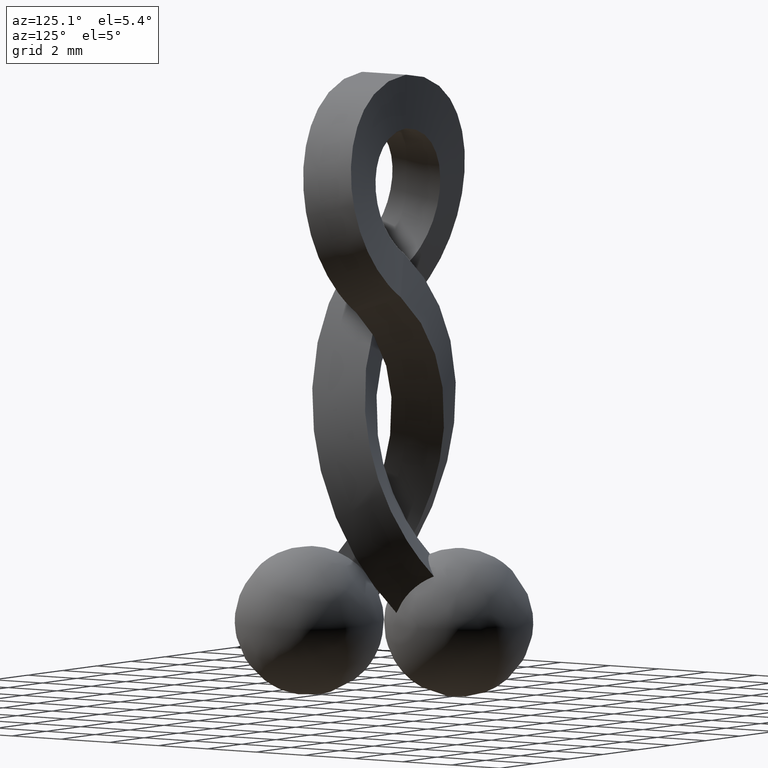
[diagram: clean part render]
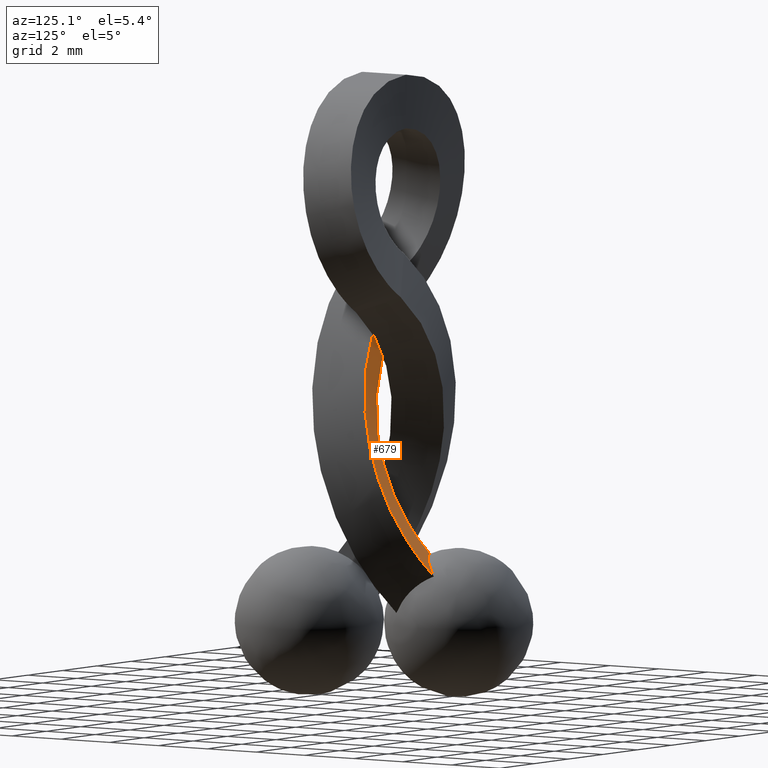
[diagram: same view with one face highlighted and labeled with its STEP entity id]
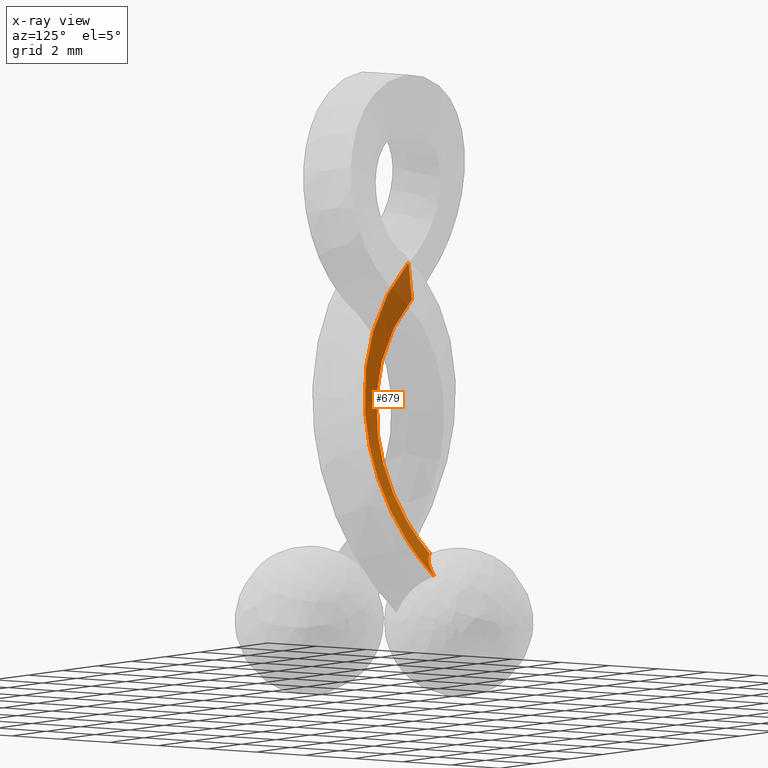
[diagram: x-ray of the same camera — body ghosted, the highlighted face saturated]
A machine part, auxiliary view. The second image highlights one B-rep face of the part: STEP entity #679.
The next image is the same camera in x-ray: the body ghosted, the highlighted face saturated — about 27% of this face is hidden behind the body in this view.
In plain terms, the highlighted face is a freeform B-spline surface patch.
Its self-contained STEP definition (entity closure, byte-faithful):
#90=CARTESIAN_POINT('',(-0.657491439051927,1.417299756467276,-11.994778617612900));
#91=VERTEX_POINT('',#90);
#107=CARTESIAN_POINT('',(0.658760675943680,2.505697120185635,-12.593247586821899));
#108=VERTEX_POINT('',#107);
#109=CARTESIAN_POINT('',(-0.657491439051927,1.417299756467276,-11.994778617612900));
#110=CARTESIAN_POINT('',(-0.517134511926048,1.484230831718313,-12.000588673705311));
#111=CARTESIAN_POINT('',(-0.382323151591536,1.558848614803807,-12.018079365642270));
#112=CARTESIAN_POINT('',(-0.124303491285074,1.722326315790740,-12.076559666338760));
#113=CARTESIAN_POINT('',(-0.004076162121452,1.809283263104518,-12.116843325796619));
#114=CARTESIAN_POINT('',(0.163556995746135,1.947324008507317,-12.193144119729700));
#115=CARTESIAN_POINT('',(0.217299145937167,1.994618738000339,-12.221239788024031));
#116=CARTESIAN_POINT('',(0.320381121082496,2.091893141079281,-12.282835618428230));
#117=CARTESIAN_POINT('',(0.369862513124475,2.142055584997199,-12.316477426704870));
#118=CARTESIAN_POINT('',(0.508873642389854,2.294118886800031,-12.423787011125290));
#119=CARTESIAN_POINT('',(0.589896935699692,2.398260327183845,-12.504172391878560));
#120=CARTESIAN_POINT('',(0.658760675943680,2.505697120185635,-12.593247586821899));
#121=B_SPLINE_CURVE_WITH_KNOTS('',3,(#109,#110,#111,#112,#113,#114,#115,#116,#117,#118,#119,#120),.UNSPECIFIED.,.F.,.U.,(4,2,2,2,2,4),(0.0,0.250000000000000,0.499999999999999,0.624999999999999,0.749999999999999,1.0),.UNSPECIFIED.);
#122=EDGE_CURVE('',#91,#108,#121,.T.);
#462=CARTESIAN_POINT('',(-1.381200528835150,0.031832750880373,-2.321052976440520));
#463=VERTEX_POINT('',#462);
#464=CARTESIAN_POINT('',(-1.381200528835150,0.031832750880373,-2.321052976440520));
#465=CARTESIAN_POINT('',(-1.377642862433158,0.031431128671852,-2.323682562733832));
#466=CARTESIAN_POINT('',(-1.374084027015562,0.031029665234120,-2.326313955397650));
#467=CARTESIAN_POINT('',(-1.252548344225459,0.017330545180671,-2.416212807102182));
#468=CARTESIAN_POINT('',(-1.136405099028224,0.005923095042926,-2.507580426602763));
#469=CARTESIAN_POINT('',(-0.909464190182076,-0.013391134007533,-2.695754686220741));
#470=CARTESIAN_POINT('',(-0.798448682129451,-0.021245397095523,-2.792972256132725));
#471=CARTESIAN_POINT('',(-0.473328374236939,-0.039361018101160,-3.093521106565341));
#472=CARTESIAN_POINT('',(-0.267158184520941,-0.044168576698839,-3.305760744271516));
#473=CARTESIAN_POINT('',(0.315299244447811,-0.036684463122232,-3.973642131997281));
#474=CARTESIAN_POINT('',(0.655276530788832,-0.002397695245965,-4.460448782801236));
#475=CARTESIAN_POINT('',(1.502527802284968,0.185559231620708,-6.005859333617005));
#476=CARTESIAN_POINT('',(1.833074065814426,0.425717098387013,-7.149490307756510));
#477=CARTESIAN_POINT('',(1.954066884848362,1.083773851023763,-9.416007244859854));
#478=CARTESIAN_POINT('',(1.744413744545469,1.501130510513226,-10.537025640521231));
#479=CARTESIAN_POINT('',(1.112414103858871,2.137845773869180,-11.902304329882259));
#480=CARTESIAN_POINT('',(0.901516504506099,2.320187147813737,-12.260243035174630));
#481=CARTESIAN_POINT('',(0.658760675943680,2.505697120185635,-12.593247586821899));
#482=B_SPLINE_CURVE_WITH_KNOTS('',3,(#464,#465,#466,#467,#468,#469,#470,#471,#472,#473,#474,#475,#476,#477,#478,#479,#480,#481),.UNSPECIFIED.,.F.,.U.,(4,2,2,2,2,2,2,2,4),(-0.000943042586308,0.0,0.031250000000000,0.062500000000000,0.125000000000000,0.250000000000000,0.500000000000000,0.750000000000000,0.845641921687115),.UNSPECIFIED.);
#483=EDGE_CURVE('',#463,#108,#482,.T.);
#551=CARTESIAN_POINT('',(-2.411460444258520,-0.551425846800978,-3.675844381211625));
#552=VERTEX_POINT('',#551);
#566=CARTESIAN_POINT('',(-2.411460444258520,-0.551425846800978,-3.675844381211625));
#567=CARTESIAN_POINT('',(-2.330601684355954,-0.560376847314786,-3.736183353277583));
#568=CARTESIAN_POINT('',(-2.259938183707811,-0.567481014458086,-3.791242172227011));
#569=CARTESIAN_POINT('',(-2.089985188468579,-0.582693306376144,-3.929737943810253));
#570=CARTESIAN_POINT('',(-1.997767623744306,-0.589641843269921,-4.009118644479323));
#571=CARTESIAN_POINT('',(-1.727577723178754,-0.605999238105813,-4.254665916435283));
#572=CARTESIAN_POINT('',(-1.556075003628476,-0.610914422524207,-4.428247807254915));
#573=CARTESIAN_POINT('',(-1.071034717968621,-0.607589786454812,-4.974997930353491));
#574=CARTESIAN_POINT('',(-0.787176611138672,-0.581206401693986,-5.374174621561333));
#575=CARTESIAN_POINT('',(-0.077234213399004,-0.431706545402088,-6.643208278309625));
#576=CARTESIAN_POINT('',(0.203883734622244,-0.237084492992499,-7.584630542350798));
#577=CARTESIAN_POINT('',(0.320937131590816,0.299958158984014,-9.454569207429165));
#578=CARTESIAN_POINT('',(0.156776130739797,0.641936245511515,-10.381544814196840));
#579=CARTESIAN_POINT('',(-0.337901582809499,1.149142917320489,-11.478813479512660));
#580=CARTESIAN_POINT('',(-0.487089554705339,1.282029373913941,-11.744653612742180));
#581=CARTESIAN_POINT('',(-0.657491439051927,1.417299756467276,-11.994778617612900));
#582=B_SPLINE_CURVE_WITH_KNOTS('',3,(#566,#567,#568,#569,#570,#571,#572,#573,#574,#575,#576,#577,#578,#579,#580,#581),.UNSPECIFIED.,.F.,.U.,(4,2,2,2,2,2,2,4),(0.150753461988381,0.175874032664971,0.207124032664971,0.269624032664971,0.394624032664971,0.644624032664971,0.894624032664971,0.979691589590200),.UNSPECIFIED.);
#583=EDGE_CURVE('',#552,#91,#582,.T.);
#588=CARTESIAN_POINT('',(-2.538646164844590,-0.537030093649915,-3.582028233097302));
#589=CARTESIAN_POINT('',(-2.171529945256316,-0.345313648741037,-3.147874938085739));
#590=CARTESIAN_POINT('',(-1.804413725668046,-0.153597203832163,-2.713721643074173));
#591=CARTESIAN_POINT('',(-1.437297506079770,0.038119241076712,-2.279568348062607));
#592=CARTESIAN_POINT('',(-2.515661047650303,-0.539632832868891,-3.598991217518992));
#593=CARTESIAN_POINT('',(-2.148790939414992,-0.347890440760743,-3.164650065235509));
#594=CARTESIAN_POINT('',(-1.781920831179687,-0.156148048652599,-2.730308912952023));
#595=CARTESIAN_POINT('',(-1.415050722944377,0.035594343455547,-2.295967760668538));
#596=CARTESIAN_POINT('',(-2.493109312041288,-0.542194257886728,-3.615609216000395));
#597=CARTESIAN_POINT('',(-2.126338293327935,-0.350438392638524,-3.181202236742657));
#598=CARTESIAN_POINT('',(-1.759567274614590,-0.158682527390324,-2.746795257484914));
#599=CARTESIAN_POINT('',(-1.392796255901241,0.033073337857878,-2.312388278227171));
#600=CARTESIAN_POINT('',(-2.364796595270830,-0.556901837922509,-3.709726977926025));
#601=CARTESIAN_POINT('',(-1.994035556176840,-0.365513943194910,-3.278536366541165));
#602=CARTESIAN_POINT('',(-1.623274517082800,-0.174126048467286,-2.847345755156305));
#603=CARTESIAN_POINT('',(-1.252513477988800,0.017261846260320,-2.416155143771475));
#604=CARTESIAN_POINT('',(-2.278430929389940,-0.565837994654982,-3.776198646555885));
#605=CARTESIAN_POINT('',(-1.897744146875730,-0.375273635141007,-3.353306877889240));
#606=CARTESIAN_POINT('',(-1.517057364361515,-0.184709275627023,-2.930415109222655));
#607=CARTESIAN_POINT('',(-1.136370581847350,0.005855083886951,-2.507523340556015));
#608=CARTESIAN_POINT('',(-2.089997897489425,-0.582704156155864,-3.929753365024669));
#609=CARTESIAN_POINT('',(-1.696475394135940,-0.392955349932619,-3.518401837258560));
#610=CARTESIAN_POINT('',(-1.302952890782450,-0.203206543709379,-3.107050309492386));
#611=CARTESIAN_POINT('',(-0.909430387428918,-0.013457737486134,-2.695698781726275));
#612=CARTESIAN_POINT('',(-1.997780193058755,-0.589652573781316,-4.009133896173024));
#613=CARTESIAN_POINT('',(-1.597991877441565,-0.400205475116298,-3.603728250221920));
#614=CARTESIAN_POINT('',(-1.198203561824406,-0.210758376451302,-3.198322604270750));
#615=CARTESIAN_POINT('',(-0.798415246207265,-0.021311277786292,-2.792916958319610));
#616=CARTESIAN_POINT('',(-1.727589863160215,-0.606009602092642,-4.254680647173346));
#617=CARTESIAN_POINT('',(-1.309491930704210,-0.417147960481652,-3.867609655923575));
#618=CARTESIAN_POINT('',(-0.891393998248136,-0.228286318870613,-3.480538664673930));
#619=CARTESIAN_POINT('',(-0.473296065792035,-0.039424677259607,-3.093467673424225));
#620=CARTESIAN_POINT('',(-1.556086843755170,-0.610924530522930,-4.428262174147115));
#621=CARTESIAN_POINT('',(-1.126433450418300,-0.422026581638375,-4.054077654035464));
#622=CARTESIAN_POINT('',(-0.696780057081485,-0.233128632753757,-3.679893133923620));
#623=CARTESIAN_POINT('',(-0.267126663744676,-0.044230683869171,-3.305708613811775));
#624=CARTESIAN_POINT('',(-1.071045623930890,-0.607599096950850,-4.975011163724069));
#625=CARTESIAN_POINT('',(-0.608920979050277,-0.417313309309470,-4.641205462789100));
#626=CARTESIAN_POINT('',(-0.146796334169533,-0.227027521668214,-4.307399761854506));
#627=CARTESIAN_POINT('',(0.315328310711207,-0.036741734026898,-3.973594060919921));
#628=CARTESIAN_POINT('',(-0.787186848224568,-0.581215141165600,-5.374187043312660));
#629=CARTESIAN_POINT('',(-0.306356619220916,-0.388293928023694,-5.069592568748940));
#630=CARTESIAN_POINT('',(0.174473609782741,-0.195372714881817,-4.764998094185460));
#631=CARTESIAN_POINT('',(0.655303838786393,-0.002451501739911,-4.460403619621995));
#632=CARTESIAN_POINT('',(-0.077242360057029,-0.431713500260849,-6.643218163521210));
#633=CARTESIAN_POINT('',(0.449354964288868,-0.225970247916636,-6.430753196387710));
#634=CARTESIAN_POINT('',(0.975952288634769,-0.020226995572358,-6.218288229253710));
#635=CARTESIAN_POINT('',(1.502549612980665,0.185516256771855,-6.005823262119710));
#636=CARTESIAN_POINT('',(0.203877092785754,-0.237090163174621,-7.584638601601450));
#637=CARTESIAN_POINT('',(0.746948700630765,-0.016166133275153,-7.439579329665820));
#638=CARTESIAN_POINT('',(1.290020308475524,0.204757896624318,-7.294520057732241));
#639=CARTESIAN_POINT('',(1.833091916320535,0.425681926523912,-7.149460785796620));
#640=CARTESIAN_POINT('',(0.320933396189102,0.299954970045531,-9.454573739991611));
#641=CARTESIAN_POINT('',(0.865314624539371,0.561221233528865,-9.441712620533121));
#642=CARTESIAN_POINT('',(1.409695852889900,0.822487497012202,-9.428851501072590));
#643=CARTESIAN_POINT('',(1.954077081240170,1.083753760495408,-9.415990381614099));
#644=CARTESIAN_POINT('',(0.156773794556477,0.641934251095533,-10.381547648937939));
#645=CARTESIAN_POINT('',(0.685989280810617,0.928328729366234,-10.433370057965160));
#646=CARTESIAN_POINT('',(1.215204767065016,1.214723207636430,-10.485192466993420));
#647=CARTESIAN_POINT('',(1.744420253319410,1.501117685907130,-10.537014876021660));
#648=CARTESIAN_POINT('',(-0.361011875763722,1.172837293880243,-11.530074878388399));
#649=CARTESIAN_POINT('',(0.127035298400152,1.497624026964762,-11.660837305167499));
#650=CARTESIAN_POINT('',(0.615082472563927,1.822410760049493,-11.791599731946190));
#651=CARTESIAN_POINT('',(1.103129646727697,2.147197493134013,-11.922362158724869));
#652=CARTESIAN_POINT('',(-0.542792654079734,1.331073164467675,-11.842056587215881));
#653=CARTESIAN_POINT('',(-0.068855957303389,1.667238212833019,-11.994104559343050));
#654=CARTESIAN_POINT('',(0.405080739472902,2.003403261198465,-12.146152531469980));
#655=CARTESIAN_POINT('',(0.879017436249174,2.339568309563858,-12.298200503596780));
#656=CARTESIAN_POINT('',(-0.753697704249057,1.492204192896564,-12.131239280741431));
#657=CARTESIAN_POINT('',(-0.295858887327252,1.839895119215380,-12.302854973554179));
#658=CARTESIAN_POINT('',(0.161979929594561,2.187586045534154,-12.474470666366919));
#659=CARTESIAN_POINT('',(0.619818746516345,2.535276971853055,-12.646086359179440));
#660=B_SPLINE_SURFACE_WITH_KNOTS('',3,3,((#588,#592,#596,#600,#604,#608,#612,#616,#620,#624,#628,#632,#636,#640,#644,#648,#652,#656),(#589,#593,#597,#601,#605,#609,#613,#617,#621,#625,#629,#633,#637,#641,#645,#649,#653,#657),(#590,#594,#598,#602,#606,#610,#614,#618,#622,#626,#630,#634,#638,#642,#646,#650,#654,#658),(#591,#595,#599,#603,#607,#611,#615,#619,#623,#627,#631,#635,#639,#643,#647,#651,#655,#659)),.UNSPECIFIED.,.F.,.F.,.U.,(4,4),(4,2,2,2,2,2,2,2,4),(0.0,1.0),(0.0,0.086055181943382,0.541163055252211,0.996270928561041,1.906486675178700,3.726918168414018,7.367781154884654,11.008644141355290,12.475486003896460),.UNSPECIFIED.);
#661=ORIENTED_EDGE('',*,*,#122,.F.);
#662=ORIENTED_EDGE('',*,*,#583,.F.);
#663=CARTESIAN_POINT('',(-2.411460444258520,-0.551425846800978,-3.675844381211625));
#664=CARTESIAN_POINT('',(-2.325107886496733,-0.502460651428030,-3.562068455151199));
#665=CARTESIAN_POINT('',(-2.238699408710483,-0.453504725619070,-3.448331015193886));
#666=CARTESIAN_POINT('',(-2.152259668395414,-0.404553631245098,-3.334615300411997));
#667=CARTESIAN_POINT('',(-2.065819932865398,-0.355602539580916,-3.220899591925079));
#668=CARTESIAN_POINT('',(-1.979348896292512,-0.306656286876748,-3.107205615586096));
#669=CARTESIAN_POINT('',(-1.892867430923259,-0.257710956738747,-2.993519188079571));
#670=CARTESIAN_POINT('',(-1.722337124850624,-0.161197072594654,-2.769344202188491));
#671=CARTESIAN_POINT('',(-1.551889476078447,-0.064666356914186,-2.545113448656771));
#672=CARTESIAN_POINT('',(-1.381200528835150,0.031832750880373,-2.321052976440520));
#673=B_SPLINE_CURVE_WITH_KNOTS('',3,(#663,#664,#665,#666,#667,#668,#669,#670,#671,#672),.UNSPECIFIED.,.F.,.U.,(4,3,3,4),(7.520263E-010,0.000452979631321,0.000905959223159,0.001799176605426),.UNSPECIFIED.);
#674=EDGE_CURVE('',#552,#463,#673,.T.);
#675=ORIENTED_EDGE('',*,*,#674,.T.);
#676=ORIENTED_EDGE('',*,*,#483,.T.);
#677=EDGE_LOOP('',(#661,#662,#675,#676));
#678=FACE_OUTER_BOUND('',#677,.T.);
#679=ADVANCED_FACE('',(#678),#660,.T.);